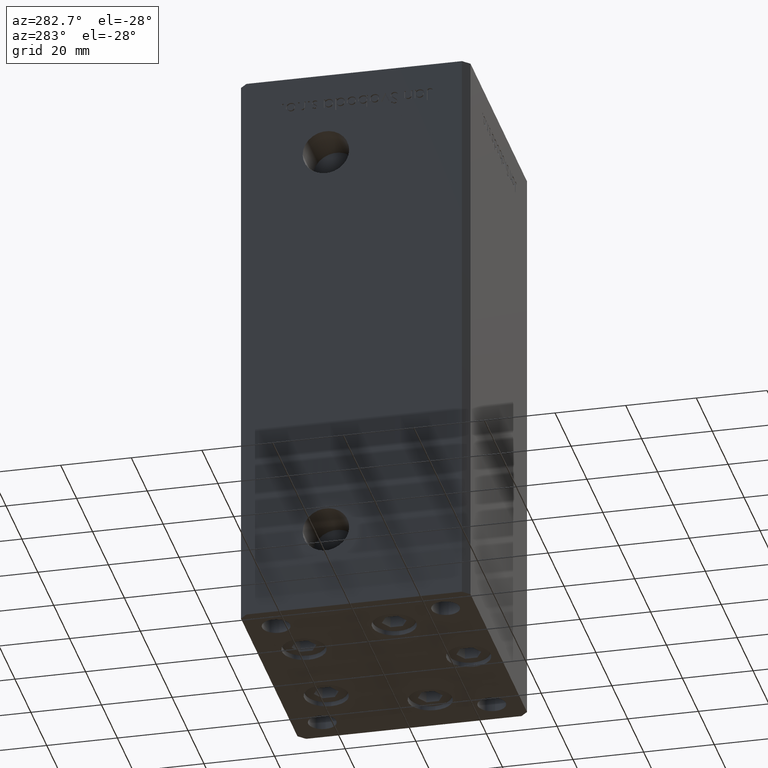
[diagram: clean part render]
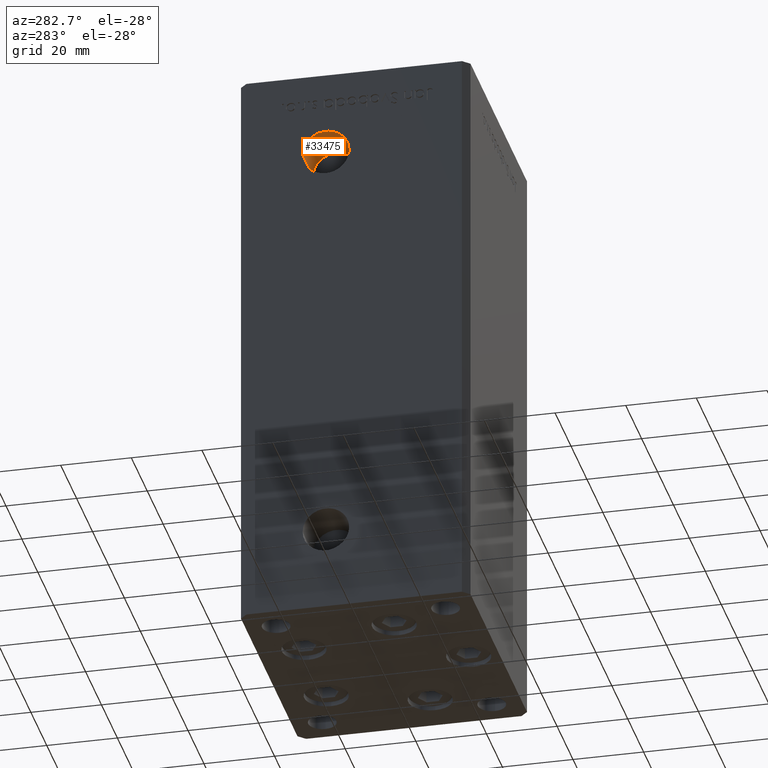
[diagram: same view with one face highlighted and labeled with its STEP entity id]
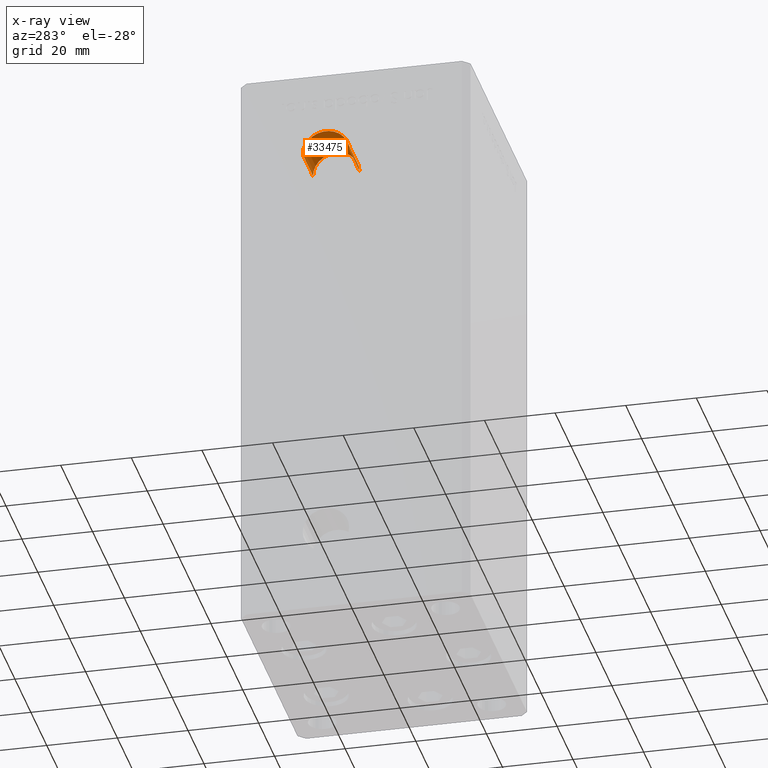
[diagram: x-ray of the same camera — body ghosted, the highlighted face saturated]
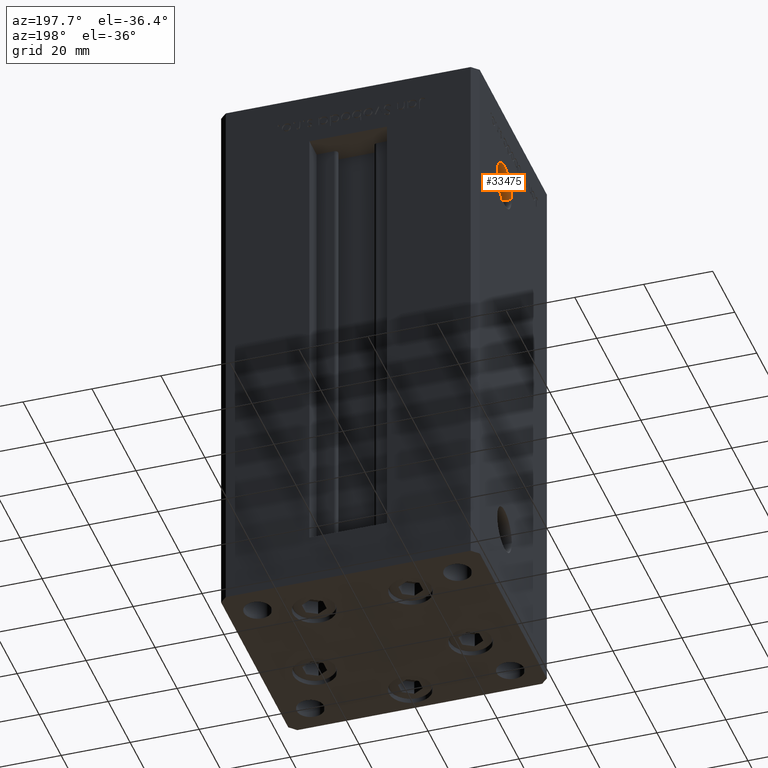
[diagram: same view with one face highlighted and labeled with its STEP entity id]
A machine part, auxiliary view. The second image highlights one B-rep face of the part: STEP entity #33475.
The next image is the same camera in x-ray: the body ghosted, the highlighted face saturated — about 0% of this face is hidden behind the body in this view.
A second angle (auxiliary view) of the same face is appended — the face is thin or edge-on in the first view.
In plain terms, the highlighted cylindrical surface (edge-blend (fillet) strip) has radius 6.58 mm, axis along (-1, -0, -0).
Its self-contained STEP definition (entity closure, byte-faithful):
#134 = EDGE_CURVE ( 'NONE', #42806, #28202, #9360, .T. ) ;
#1081 = DIRECTION ( 'NONE',  ( -1.000000000000000000, -2.275047181608927644E-16, -0.000000000000000000 ) ) ;
#1415 = VECTOR ( 'NONE', #6041, 1000.000000000000000 ) ;
#1586 = CARTESIAN_POINT ( 'NONE',  ( -24.50000000000000000, 7.999999999999994671, 127.0000000000000000 ) ) ;
#3231 = CARTESIAN_POINT ( 'NONE',  ( -24.50000000000000000, 1.419999999999979501, 127.0000000000000000 ) ) ;
#3886 = CARTESIAN_POINT ( 'NONE',  ( -24.50000000000000000, 14.58000000000000895, 127.0000000000000000 ) ) ;
#5815 = CARTESIAN_POINT ( 'NONE',  ( -37.50000000000000000, 7.999999999999991118, 127.0000000000000000 ) ) ;
#6041 = DIRECTION ( 'NONE',  ( -1.000000000000000000, -2.275047181608927644E-16, -0.000000000000000000 ) ) ;
#6169 = VERTEX_POINT ( 'NONE', #3886 ) ;
#9337 = CARTESIAN_POINT ( 'NONE',  ( -24.50000000000000000, 7.999999999999994671, 127.0000000000000000 ) ) ;
#9360 = CIRCLE ( 'NONE', #38856, 6.580000000000015170 ) ;
#10719 = ORIENTED_EDGE ( 'NONE', *, *, #134, .T. ) ;
#12112 = ORIENTED_EDGE ( 'NONE', *, *, #26696, .T. ) ;
#12712 = CARTESIAN_POINT ( 'NONE',  ( -24.50000000000000000, 1.419999999999979501, 127.0000000000000000 ) ) ;
#13300 = DIRECTION ( 'NONE',  ( -1.000000000000000000, -2.275047181608927644E-16, 0.000000000000000000 ) ) ;
#13910 = CIRCLE ( 'NONE', #43409, 6.580000000000015170 ) ;
#17174 = DIRECTION ( 'NONE',  ( 0.000000000000000000, -1.000000000000000000, 0.000000000000000000 ) ) ;
#21355 = ORIENTED_EDGE ( 'NONE', *, *, #27925, .F. ) ;
#23345 = EDGE_CURVE ( 'NONE', #35533, #6169, #13910, .T. ) ;
#23763 = ORIENTED_EDGE ( 'NONE', *, *, #23345, .F. ) ;
#26696 = EDGE_CURVE ( 'NONE', #35533, #42806, #51241, .T. ) ;
#27925 = EDGE_CURVE ( 'NONE', #6169, #28202, #37958, .T. ) ;
#28202 = VERTEX_POINT ( 'NONE', #34618 ) ;
#30880 = DIRECTION ( 'NONE',  ( -1.000000000000000000, -2.275047181608927644E-16, 0.000000000000000000 ) ) ;
#33475 = ADVANCED_FACE ( 'NONE', ( #37740 ), #41183, .F. ) ;
#34615 = CARTESIAN_POINT ( 'NONE',  ( -37.50000000000000000, 1.419999999999975948, 127.0000000000000000 ) ) ;
#34618 = CARTESIAN_POINT ( 'NONE',  ( -37.50000000000000000, 14.58000000000000718, 127.0000000000000000 ) ) ;
#35533 = VERTEX_POINT ( 'NONE', #12712 ) ;
#35955 = AXIS2_PLACEMENT_3D ( 'NONE', #1586, #1081, #17174 ) ;
#37318 = DIRECTION ( 'NONE',  ( 0.000000000000000000, -1.000000000000000000, 0.000000000000000000 ) ) ;
#37740 = FACE_OUTER_BOUND ( 'NONE', #45058, .T. ) ;
#37958 = LINE ( 'NONE', #45613, #1415 ) ;
#38856 = AXIS2_PLACEMENT_3D ( 'NONE', #5815, #30880, #41957 ) ;
#38857 = DIRECTION ( 'NONE',  ( -1.000000000000000000, -2.275047181608927644E-16, -0.000000000000000000 ) ) ;
#41183 = CYLINDRICAL_SURFACE ( 'NONE', #35955, 6.580000000000015170 ) ;
#41957 = DIRECTION ( 'NONE',  ( 0.000000000000000000, -1.000000000000000000, 0.000000000000000000 ) ) ;
#42806 = VERTEX_POINT ( 'NONE', #34615 ) ;
#43409 = AXIS2_PLACEMENT_3D ( 'NONE', #9337, #13300, #37318 ) ;
#45058 = EDGE_LOOP ( 'NONE', ( #21355, #23763, #12112, #10719 ) ) ;
#45613 = CARTESIAN_POINT ( 'NONE',  ( -24.50000000000000000, 14.58000000000000895, 127.0000000000000000 ) ) ;
#50261 = VECTOR ( 'NONE', #38857, 1000.000000000000000 ) ;
#51241 = LINE ( 'NONE', #3231, #50261 ) ;